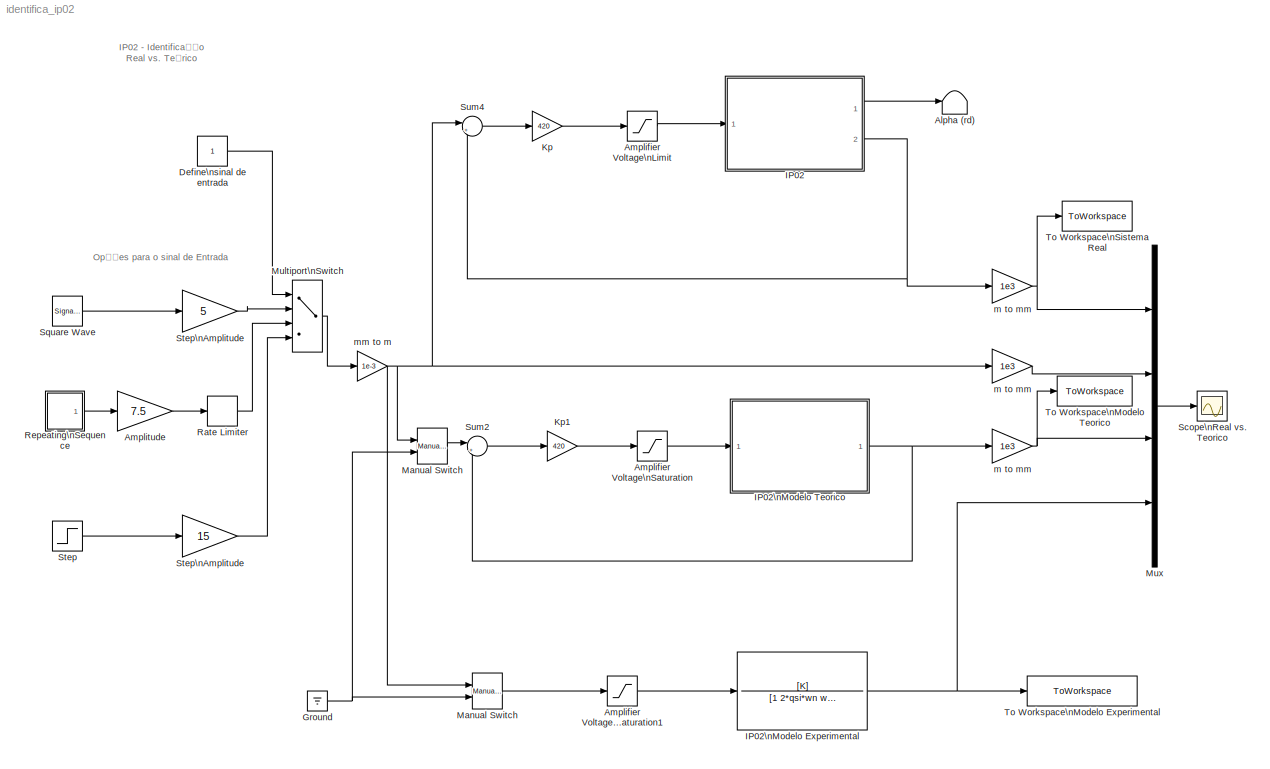
MODEL identifica_ip02
KIND model
BLOCK [Terminator] Alpha (rd)
BLOCK [Saturate] Amplifier Voltage\nLimit
  LowerLimit = - VMAX_AMP
  UpperLimit = VMAX_AMP
BLOCK [Saturate] Amplifier Voltage\nSaturation
  LowerLimit = - VMAX_AMP
  UpperLimit = VMAX_AMP
BLOCK [Saturate] Amplifier Voltage\nSaturation1
  LowerLimit = - VMAX_AMP
  UpperLimit = VMAX_AMP
BLOCK [Gain] Amplitude
  Gain = 7.5
  OutDataType = sfix(16)
  OutScaling = 2^0
  ParameterDataType = sfix(16)
  ParameterScaling = 2^0
BLOCK [Constant] Define\nsinal de entrada
  OutDataType = fixdt(1, 16)
  OutScaling = 2^0
BLOCK [Ground] Ground
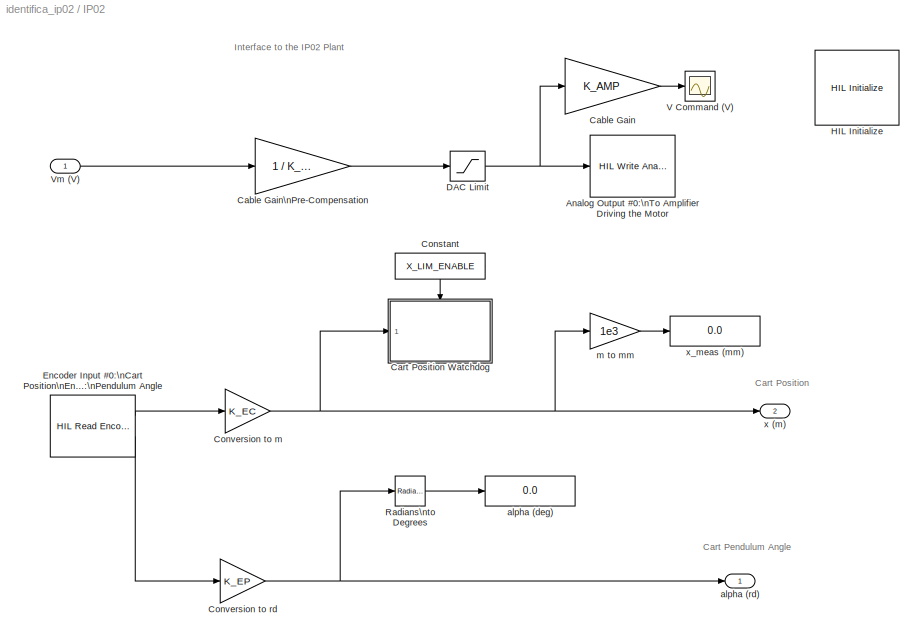
BLOCK [SubSystem] IP02
  FunctionWithSeparateData = off
  MaskHideContents = off
  MinAlgLoopOccurrences = off
  Opaque = off
  Ports = [1, 2]
  PropExecContextOutsideSubsystem = off
  RTWSystemCode = Auto
  RequestExecContextInheritance = off
BLOCK [Reference] IP02/Analog Output #0:\nTo Amplifier Driving the Motor  REF=quarc_library/Data Acquisition/Generic/Immediate I//O/HIL Write Analog
  AttributesFormatString = (%<object_name>)
  Ports = [1]
  SourceBlock = quarc_library/Data Acquisition/Generic/Immediate I//O/HIL Write Analog
  SourceType = HIL Write Analog
  Tag = unassigned
  UserData = DataTag0
  UserDataPersistent = on
  active = on
  channels = 0
  object_name = HIL-1
  sample_time = -1
  vector_input = on
BLOCK [Gain] IP02/Cable Gain
  Gain = K_AMP
  OutDataType = sfix(16)
  OutScaling = 2^0
  ParameterDataType = sfix(16)
  ParameterScaling = 2^0
BLOCK [Gain] IP02/Cable Gain\nPre-Compensation
  Gain = 1 / K_AMP
  OutDataType = sfix(16)
  OutScaling = 2^0
  ParameterDataType = sfix(16)
  ParameterScaling = 2^0
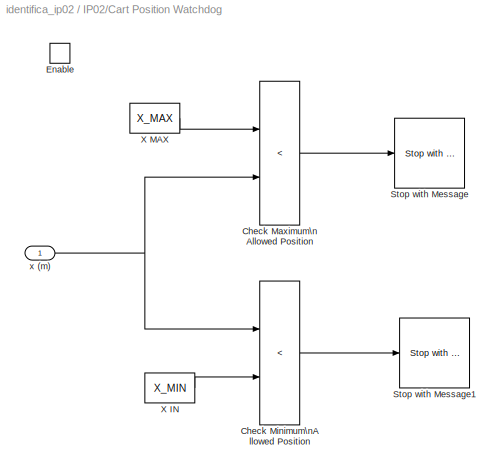
BLOCK [SubSystem] IP02/Cart Position Watchdog
  FunctionWithSeparateData = off
  MaskHideContents = off
  MinAlgLoopOccurrences = off
  Opaque = off
  Ports = [1, 0, 1]
  PropExecContextOutsideSubsystem = off
  RTWSystemCode = Auto
  RequestExecContextInheritance = off
  TreatAsAtomicUnit = on
BLOCK [RelationalOperator] IP02/Cart Position Watchdog/Check Maximum\nAllowed Position
  Operator = <
BLOCK [RelationalOperator] IP02/Cart Position Watchdog/Check Minimum\nAllowed Position
  Operator = <
BLOCK [EnablePort] IP02/Cart Position Watchdog/Enable
  Ports = []
BLOCK [Reference] IP02/Cart Position Watchdog/Stop with Message  REF=quarc_library/Sinks/Error Handling/Stop with Message
  AttributesFormatString = \"%<message>\"
  FunctionWithSeparateData = off
  Ports = [1]
  RTWMemSecDataConstants = Inherit from model
  RTWMemSecDataInternal = Inherit from model
  RTWMemSecDataParameters = Inherit from model
  RTWMemSecFuncExecute = Inherit from model
  RTWMemSecFuncInitTerm = Inherit from model
  ShowPortLabels = FromPortIcon
  SourceBlock = quarc_library/Sinks/Error Handling/Stop with Message
  SourceType = Stop with Message
  SystemSampleTime = -1
  message = Maximum Limit Reached.
  message_icon = Error
  message_type = Fixed error message
BLOCK [Reference] IP02/Cart Position Watchdog/Stop with Message1  REF=quarc_library/Sinks/Error Handling/Stop with Message
  AttributesFormatString = \"%<message>\"
  FunctionWithSeparateData = off
  Ports = [1]
  RTWMemSecDataConstants = Inherit from model
  RTWMemSecDataInternal = Inherit from model
  RTWMemSecDataParameters = Inherit from model
  RTWMemSecFuncExecute = Inherit from model
  RTWMemSecFuncInitTerm = Inherit from model
  ShowPortLabels = FromPortIcon
  SourceBlock = quarc_library/Sinks/Error Handling/Stop with Message
  SourceType = Stop with Message
  SystemSampleTime = -1
  message = Minimum Limit Reached.
  message_icon = Error
  message_type = Fixed error message
BLOCK [Constant] IP02/Cart Position Watchdog/X IN
  OutDataType = sfix(16)
  OutScaling = 2^0
  Value = X_MIN
BLOCK [Constant] IP02/Cart Position Watchdog/X MAX
  OutDataType = sfix(16)
  OutScaling = 2^0
  Value = X_MAX
BLOCK [Inport] IP02/Cart Position Watchdog/x (m)
  IconDisplay = Port number
  OutDataType = sfix(16)
  OutScaling = 2^0
BLOCK [Constant] IP02/Constant
  OutDataType = sfix(16)
  OutScaling = 2^0
  Value = X_LIM_ENABLE
BLOCK [Gain] IP02/Conversion to m
  Gain = K_EC
  OutDataType = sfix(16)
  OutScaling = 2^0
  ParameterDataType = sfix(16)
  ParameterScaling = 2^0
BLOCK [Gain] IP02/Conversion to rd
  Gain = K_EP
  OutDataType = sfix(16)
  OutScaling = 2^0
  ParameterDataType = sfix(16)
  ParameterScaling = 2^0
BLOCK [Saturate] IP02/DAC Limit
  LowerLimit = - VMAX_DAC
  UpperLimit = VMAX_DAC
BLOCK [Reference] IP02/Encoder Input #0:\nCart Position\nEncoder Input #1:\nPendulum Angle  REF=quarc_library/Data Acquisition/Generic/Timebases/HIL Read Encoder\nTimebase
  AttributesFormatString = (%<object_name>)
  Ports = [0, 2]
  SourceBlock = quarc_library/Data Acquisition/Generic/Timebases/HIL Read Encoder\nTimebase
  SourceType = HIL Read Encoder Timebase
  Tag = unassigned
  UserData = DataTag1
  UserDataPersistent = on
  active = on
  channels = [0,1]
  clock = 0
  data_type = double
  data_type_mode = Inherit via back propagation
  object_name = HIL-1
  samples_in_buffer = max(ceil(1/qc_get_step_size), 1)
  vector_output = off
BLOCK [Reference] IP02/HIL Initialize  REF=quarc_library/Data Acquisition/Generic/Configuration/HIL Initialize
  AttributesFormatString = %<object_name> (%<board_type>-%<board_number>)
  Ports = []
  SourceBlock = quarc_library/Data Acquisition/Generic/Configuration/HIL Initialize
  SourceType = HIL Initialize
  UserData = DataTag2
  UserDataPersistent = on
  active = off
  analog_input_channels = [0:7]
  analog_input_maximums = 10
  analog_input_minimums = -10
  analog_output_channels = [0:7]
  analog_output_maximums = 10
  analog_output_minimums = -10
  board_number = 0
  board_options = update_rate=normal
  board_type = q8_usb
  clock_modes = []
  digital_input_channels = []
  digital_output_channels = [0:7]
  digital_output_configuration = []
  encoder_channels = [0:7]
  encoder_filter_frequency = []
  exclusive = off
  final_analog_outputs = [0]
  final_digital_outputs = [0]
  final_other_outputs = []
  final_pwm_outputs = [0]
  hardware_clocks = [0:2]
  initial_analog_outputs = [0]
  initial_digital_outputs = [0]
  initial_encoder_counts = [0]
  initial_other_outputs = []
  initial_pwm_outputs = [0]
  object_name = HIL-1
  other_output_channels = []
  pwm_alignment = [0]
  pwm_channels = [0:7]
  pwm_configuration = [0]
  pwm_frequency = 99.532799999999995e6/4095
  pwm_leading_deadband = [0]
  pwm_modes = 0
  pwm_polarity = [1]
  pwm_trailing_deadband = [0]
  quadrature = [4]
  set_analog_input_params_at_start = on
  set_analog_input_params_at_switch_in = off
  set_analog_output_params_at_start = on
  set_analog_output_params_at_switch_in = off
  set_analog_outputs_at_start = on
  set_analog_outputs_at_switch_in = off
  set_analog_outputs_at_switch_out = off
  set_analog_outputs_at_terminate = on
  set_analog_outputs_on_watchdog = off
  set_clock_params_at_start = off
  set_clock_params_at_switch_in = off
  set_digital_output_params_at_start = off
  set_digital_output_params_at_switch_in = off
  set_digital_outputs_at_start = on
  set_digital_outputs_at_switch_in = off
  set_digital_outputs_at_switch_out = off
  set_digital_outputs_at_terminate = on
  set_digital_outputs_on_watchdog = off
  set_encoder_counts_at_start = on
  set_encoder_counts_at_switch_in = off
  set_encoder_params_at_start = on
  set_encoder_params_at_switch_in = off
  set_other_outputs_at_start = off
  set_other_outputs_at_switch_in = off
  set_other_outputs_at_switch_out = off
  set_other_outputs_at_terminate = off
  set_other_outputs_on_watchdog = off
  set_pwm_outputs_at_start = on
  set_pwm_outputs_at_switch_in = off
  set_pwm_outputs_at_switch_out = off
  set_pwm_outputs_at_terminate = on
  set_pwm_outputs_on_watchdog = off
  set_pwm_params_at_start = on
  set_pwm_params_at_switch_in = off
  watchdog_analog_outputs = 0
  watchdog_digital_outputs = [0]
  watchdog_other_outputs = []
  watchdog_pwm_outputs = [0]
BLOCK [Reference] IP02/Radians\nto Degrees  REF=simulink_extras/Transformations/Radians\nto Degrees
  FunctionWithSeparateData = off
  Ports = [1, 1]
  RTWMemSecDataConstants = Inherit from model
  RTWMemSecDataInternal = Inherit from model
  RTWMemSecDataParameters = Inherit from model
  RTWMemSecFuncExecute = Inherit from model
  RTWMemSecFuncInitTerm = Inherit from model
  ShowPortLabels = FromPortIcon
  SourceBlock = simulink_extras/Transformations/Radians\nto Degrees
  SourceType = RadiansToDegrees
  SystemSampleTime = -1
BLOCK [Scope] IP02/V Command (V)
  DataFormat = Array
  Floating = off
  MaxDataPoints = 2500
  NumInputPorts = 1
  Ports = [1]
  SampleTime = 0
  SaveName = data_vm
  SaveToWorkspace = on
  TickLabels = on
  TimeRange = 5
  YMax = 2.5
  YMin = -3
BLOCK [Inport] IP02/Vm (V)
  IconDisplay = Port number
  OutDataType = sfix(16)
  OutScaling = 2^0
BLOCK [Display] IP02/alpha (deg)
  Decimation = 100
  Lockdown = off
  Ports = [1]
BLOCK [Outport] IP02/alpha (rd)
  IconDisplay = Port number
  InitialOutput = 0
  OutDataType = sfix(16)
  OutScaling = 2^0
BLOCK [Gain] IP02/m to mm
  Gain = 1e3
  OutDataType = sfix(16)
  OutScaling = 2^0
  ParameterDataType = sfix(16)
  ParameterScaling = 2^0
BLOCK [Outport] IP02/x (m)
  IconDisplay = Port number
  InitialOutput = 0
  OutDataType = sfix(16)
  OutScaling = 2^0
  Port = 2
BLOCK [Display] IP02/x_meas (mm)
  Decimation = 100
  Lockdown = off
  Ports = [1]
BLOCK [TransferFcn] IP02\nModelo Experimental
  Denominator = [1 2*qsi*wn wn^2]
  Numerator = [K]
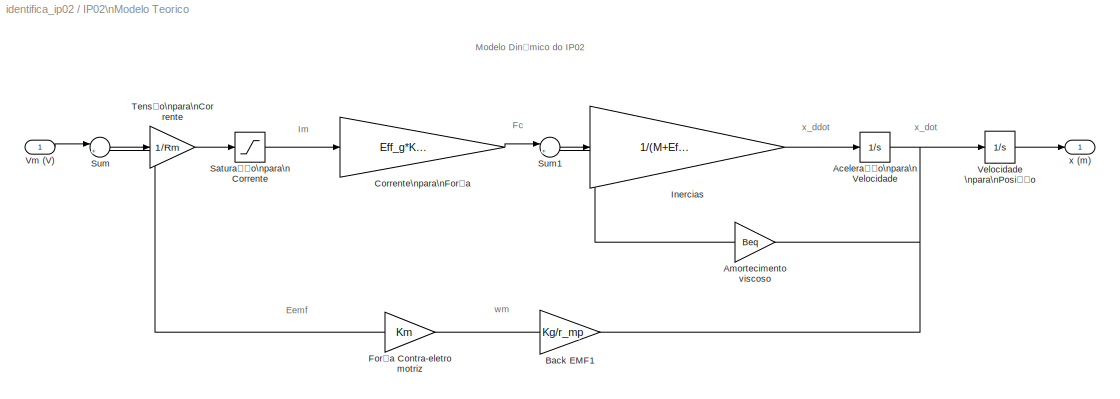
BLOCK [SubSystem] IP02\nModelo Teorico
  FunctionWithSeparateData = off
  MaskHideContents = off
  MinAlgLoopOccurrences = off
  Opaque = off
  Ports = [1, 1]
  PropExecContextOutsideSubsystem = off
  RTWSystemCode = Auto
  RequestExecContextInheritance = off
BLOCK [Integrator] IP02\nModelo Teorico/Aceleração\npara\nVelocidade
  Ports = [1, 1]
BLOCK [Gain] IP02\nModelo Teorico/Amortecimento viscoso
  Gain = Beq
  OutDataType = sfix(16)
  OutScaling = 2^0
  ParameterDataType = sfix(16)
  ParameterScaling = 2^0
BLOCK [Gain] IP02\nModelo Teorico/Back EMF1
  Gain = Kg/r_mp
  OutDataType = sfix(16)
  OutScaling = 2^0
  ParameterDataType = sfix(16)
  ParameterScaling = 2^0
BLOCK [Gain] IP02\nModelo Teorico/Corrente\npara\nForça
  Gain = Eff_g*Kg*Eff_m*Kt/r_mp
  OutDataType = sfix(16)
  OutScaling = 2^0
  ParameterDataType = sfix(16)
  ParameterScaling = 2^0
BLOCK [Gain] IP02\nModelo Teorico/Força Contra-eletromotriz
  Gain = Km
  OutDataType = sfix(16)
  OutScaling = 2^0
  ParameterDataType = sfix(16)
  ParameterScaling = 2^0
BLOCK [Gain] IP02\nModelo Teorico/Inercias
  Gain = 1/(M+Eff_g*Kg^2*Jm/r_mp^2)
  OutDataType = sfix(16)
  OutScaling = 2^0
  ParameterDataType = sfix(16)
  ParameterScaling = 2^0
BLOCK [Saturate] IP02\nModelo Teorico/Saturação\npara\nCorrente
  LowerLimit = - IMAX_AMP
  UpperLimit = IMAX_AMP
BLOCK [Sum] IP02\nModelo Teorico/Sum
  IconShape = round
  Inputs = |+-
  OutDataType = sfix(16)
  OutScaling = 2^0
  Ports = [2, 1]
BLOCK [Sum] IP02\nModelo Teorico/Sum1
  IconShape = round
  Inputs = |+-
  OutDataType = sfix(16)
  OutScaling = 2^0
  Ports = [2, 1]
BLOCK [Gain] IP02\nModelo Teorico/Tensão\npara\nCorrente
  Gain = 1/Rm
  OutDataType = sfix(16)
  OutScaling = 2^0
  ParameterDataType = sfix(16)
  ParameterScaling = 2^0
BLOCK [Integrator] IP02\nModelo Teorico/Velocidade \npara\nPosição
  Ports = [1, 1]
BLOCK [Inport] IP02\nModelo Teorico/Vm (V)
  IconDisplay = Port number
  OutDataType = sfix(16)
  OutScaling = 2^0
BLOCK [Outport] IP02\nModelo Teorico/x (m)
  IconDisplay = Port number
  OutDataType = sfix(16)
  OutScaling = 2^0
BLOCK [Gain] Kp
  Gain = 420
  OutDataType = sfix(16)
  OutScaling = 2^0
  ParameterDataType = sfix(16)
  ParameterScaling = 2^0
BLOCK [Gain] Kp1
  Gain = 420
  OutDataType = sfix(16)
  OutScaling = 2^0
  ParameterDataType = sfix(16)
  ParameterScaling = 2^0
BLOCK [Reference] Manual Switch  REF=simulink/Signal\nRouting/Manual Switch
  FunctionWithSeparateData = off
  Ports = [2, 1]
  RTWMemSecDataConstants = Inherit from model
  RTWMemSecDataInternal = Inherit from model
  RTWMemSecDataParameters = Inherit from model
  RTWMemSecFuncExecute = Inherit from model
  RTWMemSecFuncInitTerm = Inherit from model
  ShowPortLabels = FromPortIcon
  SourceBlock = simulink/Signal\nRouting/Manual Switch
  SourceType = Manual Switch
  SystemSampleTime = -1
  action = 0
  sw = 0
  varsize = off
BLOCK [Reference] Manual Switch   REF=simulink/Signal\nRouting/Manual Switch
  FunctionWithSeparateData = off
  Ports = [2, 1]
  RTWMemSecDataConstants = Inherit from model
  RTWMemSecDataInternal = Inherit from model
  RTWMemSecDataParameters = Inherit from model
  RTWMemSecFuncExecute = Inherit from model
  RTWMemSecFuncInitTerm = Inherit from model
  ShowPortLabels = FromPortIcon
  SourceBlock = simulink/Signal\nRouting/Manual Switch
  SourceType = Manual Switch
  SystemSampleTime = -1
  action = 0
  sw = 0
  varsize = off
BLOCK [MultiPortSwitch] Multiport\nSwitch
  InputSameDT = off
  OutDataType = fixdt(1, 16)
  OutScaling = 2^0
  Ports = [4, 1]
  SaturateOnIntegerOverflow = off
BLOCK [Mux] Mux
  DisplayOption = bar
  Ports = [4, 1]
BLOCK [RateLimiter] Rate Limiter
  FallingSlewLimit = - R_SLEW_RATE
  RisingSlewLimit = R_SLEW_RATE
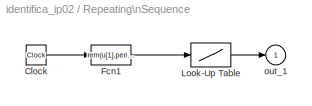
BLOCK [SubSystem] Repeating\nSequence
  FunctionWithSeparateData = off
  MaskCallbackString = |
  MaskDescription = Repeating table.\nEnter values of time and output for first cycle.
  MaskDisplay = plot([t,t+period,t+2*period],[y,y,y])
  MaskEnableString = on,on
  MaskHelp = Repeats cycle given in table. Time values should be monotonically increasing.
  MaskHideContents = off
  MaskIconFrame = on
  MaskIconOpaque = on
  MaskIconRotate = none
  MaskIconUnits = autoscale
  MaskInitialization = period = max(@1); t = @1; y = @2;
  MaskPromptString = Time values:|Output values:
  MaskStyleString = edit,edit
  MaskTabNameString = ,
  MaskToolTipString = on,on
  MaskTunableValueString = on,on
  MaskType = Repeating table
  MaskValueString = [0 10 10 30 30  50 ]*0.2|[0 0 1 1 -1 -1]
  MaskVarAliasString = ,
  MaskVisibilityString = on,on
  MinAlgLoopOccurrences = off
  Opaque = off
  Ports = [0, 1]
  PropExecContextOutsideSubsystem = off
  RTWSystemCode = Auto
  RequestExecContextInheritance = off
  ShowPortLabels = none
BLOCK [Clock] Repeating\nSequence/Clock
  Decimation = 10
BLOCK [Fcn] Repeating\nSequence/Fcn1
  Expr = rem(u[1],period)
BLOCK [Lookup] Repeating\nSequence/Look-Up Table
  InputValues = t
  OutDataType = sfix(16)
  OutScaling = 2^0
  Table = y
BLOCK [Outport] Repeating\nSequence/out_1
  IconDisplay = Port number
  InitialOutput = 0
  OutDataType = sfix(16)
  OutScaling = 2^0
BLOCK [Scope] Scope\nReal vs. Teorico
  DataFormat = Array
  Floating = off
  LimitDataPoints = off
  NumInputPorts = 1
  Ports = [1]
  SampleTime = 0
  SaveName = x
  SaveToWorkspace = on
  TickLabels = on
  TimeRange = 5
  YMax = 11
  YMin = -11
  ZoomMode = yonly
BLOCK [SignalGenerator] Square Wave
  Frequency = 0.66
  Ports = [0, 1]
  WaveForm = square
BLOCK [Step] Step
  SampleTime = 0
  Time = 0
BLOCK [Gain] Step\nAmplitude
  Gain = 5
  OutDataType = sfix(16)
  OutScaling = 2^0
  ParameterDataType = sfix(16)
  ParameterScaling = 2^0
BLOCK [Gain] Step\nAmplitude 
  Gain = 15
  OutDataType = sfix(16)
  OutScaling = 2^0
  ParameterDataType = sfix(16)
  ParameterScaling = 2^0
BLOCK [Sum] Sum2
  IconShape = round
  Inputs = |+-
  OutDataType = sfix(16)
  OutScaling = 2^0
  Ports = [2, 1]
BLOCK [Sum] Sum4
  IconShape = round
  Inputs = |+-
  OutDataType = sfix(16)
  OutScaling = 2^0
  Ports = [2, 1]
BLOCK [ToWorkspace] To Workspace\nModelo Experimental
  MaxDataPoints = inf
  SampleTime = -1
  SaveFormat = Structure With Time
  VariableName = output_experimental
BLOCK [ToWorkspace] To Workspace\nModelo Teorico
  MaxDataPoints = inf
  SampleTime = -1
  SaveFormat = Structure With Time
  VariableName = output_teorico
BLOCK [ToWorkspace] To Workspace\nSistema Real
  MaxDataPoints = inf
  SampleTime = -1
  SaveFormat = Structure With Time
  VariableName = output_real
BLOCK [Gain] m to mm
  Gain = 1e3
  OutDataType = sfix(16)
  OutScaling = 2^0
  ParameterDataType = sfix(16)
  ParameterScaling = 2^0
BLOCK [Gain] m to mm 
  Gain = 1e3
  OutDataType = sfix(16)
  OutScaling = 2^0
  ParameterDataType = sfix(16)
  ParameterScaling = 2^0
BLOCK [Gain] m to mm  
  Gain = 1e3
  OutDataType = sfix(16)
  OutScaling = 2^0
  ParameterDataType = sfix(16)
  ParameterScaling = 2^0
BLOCK [Gain] mm to m
  Gain = 1e-3
  OutDataType = sfix(16)
  OutDataTypeMode = Inherit via internal rule
  OutDataTypeStr = Inherit: Inherit via internal rule
  OutScaling = 2^0
  ParamDataTypeStr = Inherit: Inherit via internal rule
  ParameterDataType = sfix(16)
  ParameterDataTypeMode = Inherit via internal rule
  ParameterScaling = 2^0
  SaturateOnIntegerOverflow = off
ANNOTATION (root): IP02 - Identificação\nReal vs. Teórico
ANNOTATION (root): Opções para o sinal de Entrada
ANNOTATION IP02: Cart Pendulum Angle
ANNOTATION IP02: Cart Position
ANNOTATION IP02: Interface to the IP02 Plant
ANNOTATION IP02\nModelo Teorico: Eemf
ANNOTATION IP02\nModelo Teorico: Fc
ANNOTATION IP02\nModelo Teorico: Im
ANNOTATION IP02\nModelo Teorico: Modelo Dinâmico do IP02
ANNOTATION IP02\nModelo Teorico: wm
ANNOTATION IP02\nModelo Teorico: x_ddot
ANNOTATION IP02\nModelo Teorico: x_dot
LINE Amplifier Voltage\nLimit:1 -> IP02:1
LINE Amplifier Voltage\nSaturation1:1 -> IP02\nModelo Experimental:1
LINE Amplifier Voltage\nSaturation:1 -> IP02\nModelo Teorico:1
LINE Amplitude:1 -> Rate Limiter:1
LINE Define\nsinal de entrada:1 -> Multiport\nSwitch:1
NET Ground:1 -> Manual Switch :2, Manual Switch:2
LINE IP02/Cable Gain:1 -> IP02/V Command (V):1
LINE IP02/Cable Gain\nPre-Compensation:1 -> IP02/DAC Limit:1
LINE IP02/Cart Position Watchdog/Check Maximum\nAllowed Position:1 -> IP02/Cart Position Watchdog/Stop with Message:1
LINE IP02/Cart Position Watchdog/Check Minimum\nAllowed Position:1 -> IP02/Cart Position Watchdog/Stop with Message1:1
LINE IP02/Cart Position Watchdog/X IN:1 -> IP02/Cart Position Watchdog/Check Minimum\nAllowed Position:2
LINE IP02/Cart Position Watchdog/X MAX:1 -> IP02/Cart Position Watchdog/Check Maximum\nAllowed Position:1
NET IP02/Cart Position Watchdog/x (m):1 -> IP02/Cart Position Watchdog/Check Maximum\nAllowed Position:2, IP02/Cart Position Watchdog/Check Minimum\nAllowed Position:1
LINE IP02/Constant:1 -> IP02/Cart Position Watchdog:enable
NET IP02/Conversion to m:1 -> IP02/Cart Position Watchdog:1, IP02/m to mm:1, IP02/x (m):1
NET IP02/Conversion to rd:1 -> IP02/Radians\nto Degrees:1, IP02/alpha (rd):1
NET IP02/DAC Limit:1 -> IP02/Analog Output #0:\nTo Amplifier Driving the Motor:1, IP02/Cable Gain:1
LINE IP02/Encoder Input #0:\nCart Position\nEncoder Input #1:\nPendulum Angle:1 -> IP02/Conversion to m:1
LINE IP02/Encoder Input #0:\nCart Position\nEncoder Input #1:\nPendulum Angle:2 -> IP02/Conversion to rd:1
LINE IP02/Radians\nto Degrees:1 -> IP02/alpha (deg):1
LINE IP02/Vm (V):1 -> IP02/Cable Gain\nPre-Compensation:1
LINE IP02/m to mm:1 -> IP02/x_meas (mm):1
LINE IP02:1 -> Alpha (rd):1
NET IP02:2 -> Sum4:2, m to mm:1
NET IP02\nModelo Experimental:1 -> Mux:4, To Workspace\nModelo Experimental:1
NET IP02\nModelo Teorico/Aceleração\npara\nVelocidade:1 -> IP02\nModelo Teorico/Amortecimento viscoso:1, IP02\nModelo Teorico/Back EMF1:1, IP02\nModelo Teorico/Velocidade \npara\nPosição:1
LINE IP02\nModelo Teorico/Amortecimento viscoso:1 -> IP02\nModelo Teorico/Sum1:2
LINE IP02\nModelo Teorico/Back EMF1:1 -> IP02\nModelo Teorico/Força Contra-eletromotriz:1
LINE IP02\nModelo Teorico/Corrente\npara\nForça:1 -> IP02\nModelo Teorico/Sum1:1
LINE IP02\nModelo Teorico/Força Contra-eletromotriz:1 -> IP02\nModelo Teorico/Sum:2
LINE IP02\nModelo Teorico/Inercias:1 -> IP02\nModelo Teorico/Aceleração\npara\nVelocidade:1
LINE IP02\nModelo Teorico/Saturação\npara\nCorrente:1 -> IP02\nModelo Teorico/Corrente\npara\nForça:1
LINE IP02\nModelo Teorico/Sum1:1 -> IP02\nModelo Teorico/Inercias:1
LINE IP02\nModelo Teorico/Sum:1 -> IP02\nModelo Teorico/Tensão\npara\nCorrente:1
LINE IP02\nModelo Teorico/Tensão\npara\nCorrente:1 -> IP02\nModelo Teorico/Saturação\npara\nCorrente:1
LINE IP02\nModelo Teorico/Velocidade \npara\nPosição:1 -> IP02\nModelo Teorico/x (m):1
LINE IP02\nModelo Teorico/Vm (V):1 -> IP02\nModelo Teorico/Sum:1
NET IP02\nModelo Teorico:1 -> Sum2:2, m to mm  :1
LINE Kp1:1 -> Amplifier Voltage\nSaturation:1
LINE Kp:1 -> Amplifier Voltage\nLimit:1
LINE Manual Switch :1 -> Sum2:1
LINE Manual Switch:1 -> Amplifier Voltage\nSaturation1:1
LINE Multiport\nSwitch:1 -> mm to m:1
LINE Mux:1 -> Scope\nReal vs. Teorico:1
LINE Rate Limiter:1 -> Multiport\nSwitch:3
LINE Repeating\nSequence/Clock:1 -> Repeating\nSequence/Fcn1:1
LINE Repeating\nSequence/Fcn1:1 -> Repeating\nSequence/Look-Up Table:1
LINE Repeating\nSequence/Look-Up Table:1 -> Repeating\nSequence/out_1:1
LINE Repeating\nSequence:1 -> Amplitude:1
LINE Square Wave:1 -> Step\nAmplitude:1
LINE Step:1 -> Step\nAmplitude :1
LINE Step\nAmplitude :1 -> Multiport\nSwitch:4
LINE Step\nAmplitude:1 -> Multiport\nSwitch:2
LINE Sum2:1 -> Kp1:1
LINE Sum4:1 -> Kp:1
NET m to mm  :1 -> Mux:3, To Workspace\nModelo Teorico:1
LINE m to mm :1 -> Mux:2
NET m to mm:1 -> Mux:1, To Workspace\nSistema Real:1
NET mm to m:1 -> Manual Switch :1, Manual Switch:1, Sum4:1, m to mm :1
note: NET lines group one-source signal fan-out (src -> all destinations, sorted); 1:1 wires keep LINE
